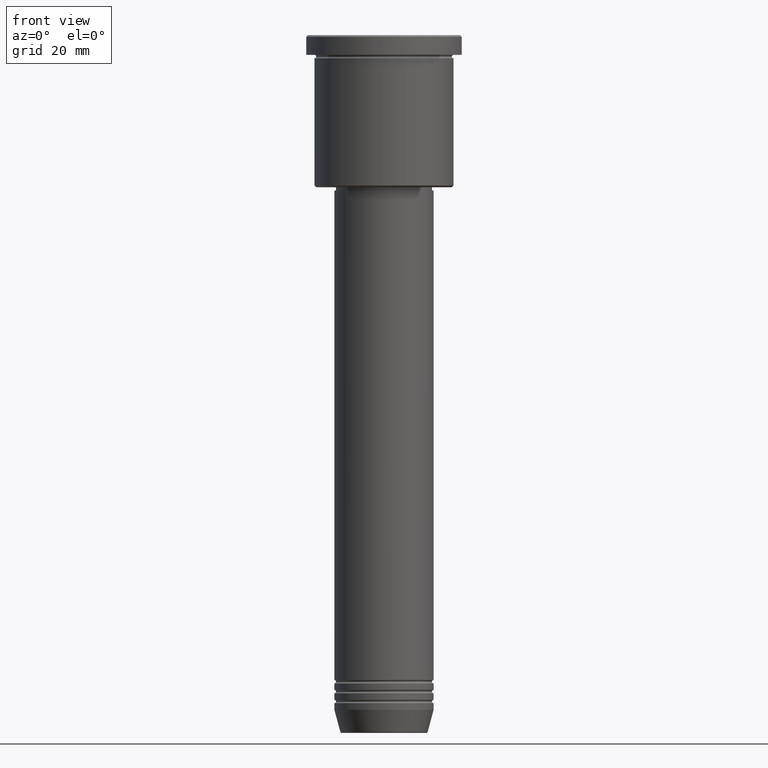
[diagram: clean part render]
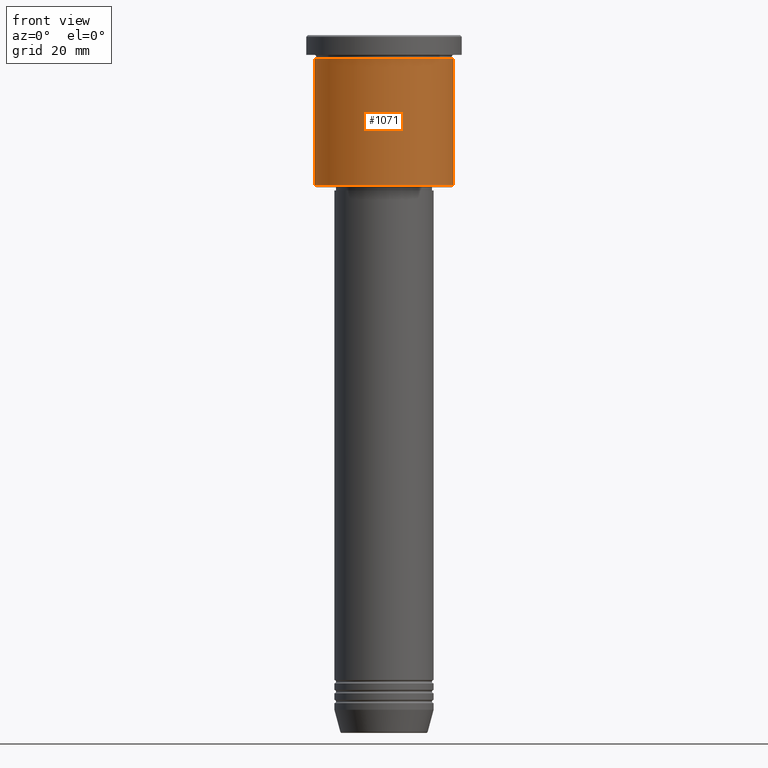
[diagram: same view with one face highlighted and labeled with its STEP entity id]
A machine part, front view. The second image highlights one B-rep face of the part: STEP entity #1071.
In plain terms, the highlighted cylindrical surface (partial cylindrical patch) has radius 21 mm, axis along (-0, -0, 1).
Its self-contained STEP definition (entity closure, byte-faithful):
#17 = AXIS2_PLACEMENT_3D ( 'NONE', #999, #838, #842 ) ;
#35 = DIRECTION ( 'NONE',  ( -0.000000000000000000, -0.000000000000000000, 1.000000000000000000 ) ) ;
#208 = CARTESIAN_POINT ( 'NONE',  ( 21.00000000000000000, 0.000000000000000000, 0.000000000000000000 ) ) ;
#221 = DIRECTION ( 'NONE',  ( -0.000000000000000000, -0.000000000000000000, 1.000000000000000000 ) ) ;
#225 = ORIENTED_EDGE ( 'NONE', *, *, #889, .T. ) ;
#292 = DIRECTION ( 'NONE',  ( -0.000000000000000000, -0.000000000000000000, 1.000000000000000000 ) ) ;
#294 = EDGE_CURVE ( 'NONE', #1000, #404, #869, .T. ) ;
#297 = VECTOR ( 'NONE', #970, 1000.000000000000000 ) ;
#307 = CARTESIAN_POINT ( 'NONE',  ( -21.00000000000000000, 2.571758278209441661E-15, -45.50000000000001421 ) ) ;
#317 = CIRCLE ( 'NONE', #17, 21.00000000000000000 ) ;
#333 = LINE ( 'NONE', #515, #297 ) ;
#358 = AXIS2_PLACEMENT_3D ( 'NONE', #468, #292, #930 ) ;
#388 = CARTESIAN_POINT ( 'NONE',  ( 0.000000000000000000, 0.000000000000000000, 0.000000000000000000 ) ) ;
#404 = VERTEX_POINT ( 'NONE', #709 ) ;
#447 = CARTESIAN_POINT ( 'NONE',  ( 21.00000000000000000, 0.000000000000000000, -45.50000000000001421 ) ) ;
#468 = CARTESIAN_POINT ( 'NONE',  ( 0.000000000000000000, 0.000000000000000000, -45.50000000000001421 ) ) ;
#515 = CARTESIAN_POINT ( 'NONE',  ( -21.00000000000000000, 2.571758278209441661E-15, 0.000000000000000000 ) ) ;
#572 = VERTEX_POINT ( 'NONE', #968 ) ;
#598 = ORIENTED_EDGE ( 'NONE', *, *, #1135, .F. ) ;
#709 = CARTESIAN_POINT ( 'NONE',  ( 21.00000000000000000, 0.000000000000000000, -6.999999999999994671 ) ) ;
#785 = FACE_OUTER_BOUND ( 'NONE', #1062, .T. ) ;
#786 = ORIENTED_EDGE ( 'NONE', *, *, #841, .F. ) ;
#813 = ORIENTED_EDGE ( 'NONE', *, *, #294, .T. ) ;
#838 = DIRECTION ( 'NONE',  ( -0.000000000000000000, -0.000000000000000000, 1.000000000000000000 ) ) ;
#841 = EDGE_CURVE ( 'NONE', #1078, #572, #333, .T. ) ;
#842 = DIRECTION ( 'NONE',  ( 1.000000000000000000, 0.000000000000000000, 0.000000000000000000 ) ) ;
#869 = LINE ( 'NONE', #208, #1156 ) ;
#889 = EDGE_CURVE ( 'NONE', #1078, #1000, #1091, .T. ) ;
#930 = DIRECTION ( 'NONE',  ( -1.000000000000000000, 0.000000000000000000, 0.000000000000000000 ) ) ;
#968 = CARTESIAN_POINT ( 'NONE',  ( -21.00000000000000000, 2.571758278209441661E-15, -6.999999999999994671 ) ) ;
#970 = DIRECTION ( 'NONE',  ( -0.000000000000000000, -0.000000000000000000, 1.000000000000000000 ) ) ;
#999 = CARTESIAN_POINT ( 'NONE',  ( 0.000000000000000000, 0.000000000000000000, -6.999999999999994671 ) ) ;
#1000 = VERTEX_POINT ( 'NONE', #447 ) ;
#1015 = AXIS2_PLACEMENT_3D ( 'NONE', #388, #35, #1128 ) ;
#1062 = EDGE_LOOP ( 'NONE', ( #786, #225, #813, #598 ) ) ;
#1071 = ADVANCED_FACE ( 'NONE', ( #785 ), #1117, .T. ) ;
#1078 = VERTEX_POINT ( 'NONE', #307 ) ;
#1091 = CIRCLE ( 'NONE', #358, 21.00000000000000000 ) ;
#1117 = CYLINDRICAL_SURFACE ( 'NONE', #1015, 21.00000000000000000 ) ;
#1128 = DIRECTION ( 'NONE',  ( 1.000000000000000000, 0.000000000000000000, 0.000000000000000000 ) ) ;
#1135 = EDGE_CURVE ( 'NONE', #572, #404, #317, .T. ) ;
#1156 = VECTOR ( 'NONE', #221, 1000.000000000000000 ) ;